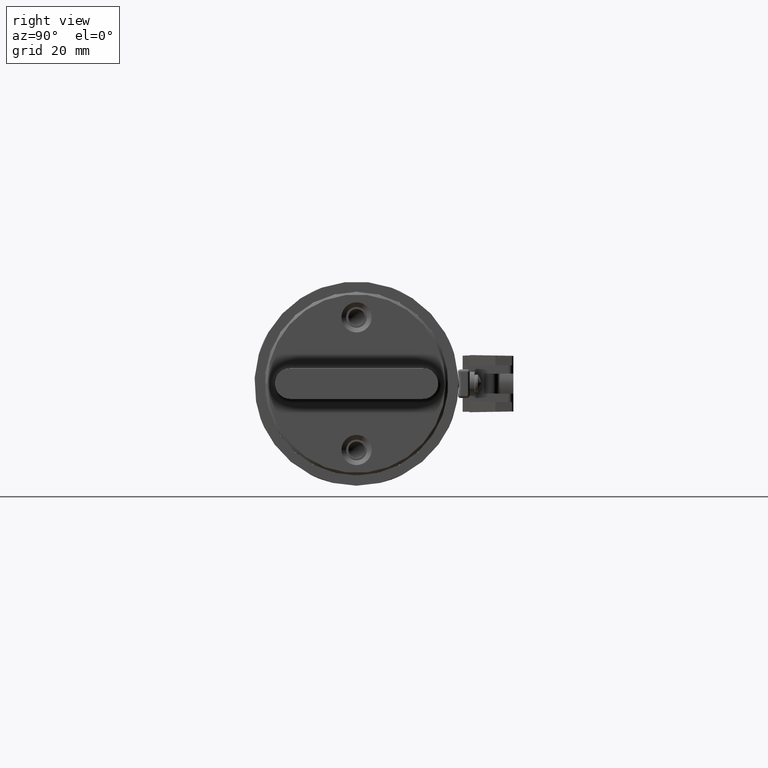
[diagram: clean part render]
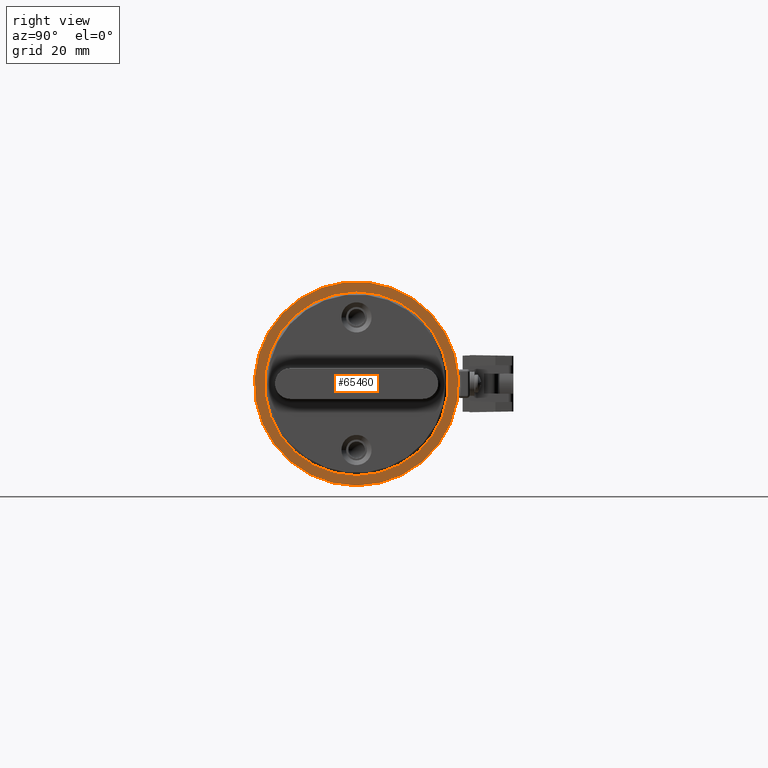
[diagram: same view with one face highlighted and labeled with its STEP entity id]
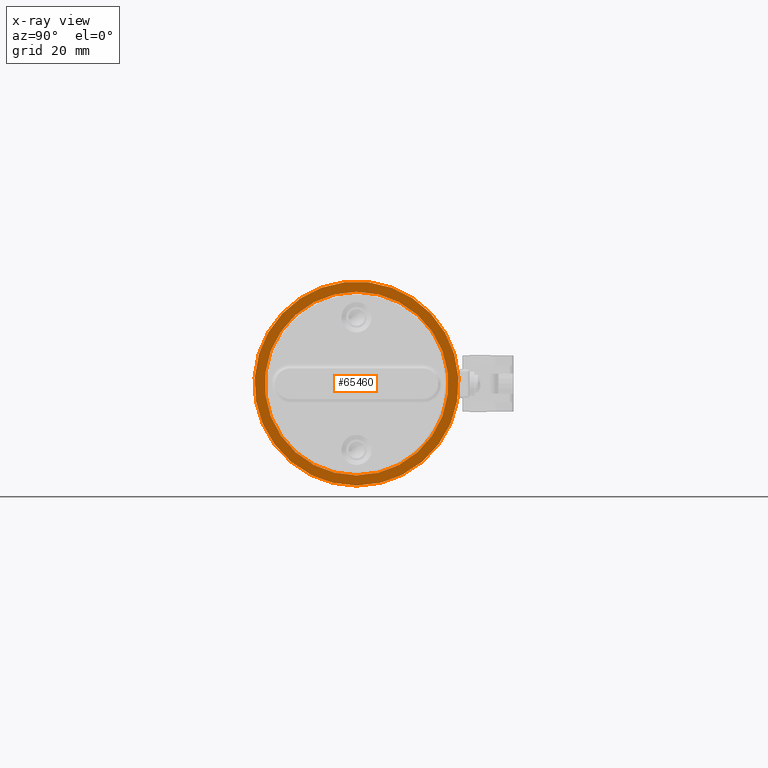
[diagram: x-ray of the same camera — body ghosted, the highlighted face saturated]
A machine part, right view. The second image highlights one B-rep face of the part: STEP entity #65460.
The next image is the same camera in x-ray: the body ghosted, the highlighted face saturated — about 0% of this face is hidden behind the body in this view.
In plain terms, the highlighted planar face has unit normal (1, 0, 0).
Its self-contained STEP definition (entity closure, byte-faithful):
#139 = ORIENTED_EDGE ( 'NONE', *, *, #128876, .T. ) ;
#1163 = FACE_BOUND ( 'NONE', #129718, .T. ) ;
#4731 = CARTESIAN_POINT ( 'NONE',  ( 3.750000000000000000, 5.028988270783843100E-030, -1.250000000000066600 ) ) ;
#9846 = AXIS2_PLACEMENT_3D ( 'NONE', #38471, #114411, #49380 ) ;
#18614 = EDGE_CURVE ( 'NONE', #106602, #106602, #133711, .T. ) ;
#32215 = CARTESIAN_POINT ( 'NONE',  ( 3.750000000000000000, 5.028988270783843100E-030, -6.677458060537492400E-014 ) ) ;
#38471 = CARTESIAN_POINT ( 'NONE',  ( 3.750000000000000000, 5.028988270783843100E-030, -6.677458060537492400E-014 ) ) ;
#43096 = DIRECTION ( 'NONE',  ( 0.0000000000000000000, 0.0000000000000000000, -1.000000000000000000 ) ) ;
#49380 = DIRECTION ( 'NONE',  ( 0.0000000000000000000, 0.0000000000000000000, -1.000000000000000000 ) ) ;
#51005 = DIRECTION ( 'NONE',  ( 1.000000000000000000, 0.0000000000000000000, 0.0000000000000000000 ) ) ;
#57390 = EDGE_LOOP ( 'NONE', ( #139 ) ) ;
#65460 = ADVANCED_FACE ( 'NONE', ( #87701, #1163 ), #128950, .T. ) ;
#67475 = ORIENTED_EDGE ( 'NONE', *, *, #18614, .F. ) ;
#87701 = FACE_OUTER_BOUND ( 'NONE', #57390, .T. ) ;
#96808 = CARTESIAN_POINT ( 'NONE',  ( 3.750000000000000000, 5.028988270783843100E-030, -1.125000000000067100 ) ) ;
#106602 = VERTEX_POINT ( 'NONE', #96808 ) ;
#107047 = CIRCLE ( 'NONE', #127994, 1.250000000000000000 ) ;
#108068 = DIRECTION ( 'NONE',  ( 1.000000000000000000, 0.0000000000000000000, 0.0000000000000000000 ) ) ;
#114411 = DIRECTION ( 'NONE',  ( 1.000000000000000000, 0.0000000000000000000, 0.0000000000000000000 ) ) ;
#116052 = CARTESIAN_POINT ( 'NONE',  ( 3.750000000000000000, 5.028988270783843100E-030, -6.677458060537492400E-014 ) ) ;
#116566 = VERTEX_POINT ( 'NONE', #4731 ) ;
#126919 = DIRECTION ( 'NONE',  ( 0.0000000000000000000, 0.0000000000000000000, -1.000000000000000000 ) ) ;
#127994 = AXIS2_PLACEMENT_3D ( 'NONE', #116052, #51005, #126919 ) ;
#128162 = AXIS2_PLACEMENT_3D ( 'NONE', #32215, #108068, #43096 ) ;
#128876 = EDGE_CURVE ( 'NONE', #116566, #116566, #107047, .T. ) ;
#128950 = PLANE ( 'NONE',  #128162 ) ;
#129718 = EDGE_LOOP ( 'NONE', ( #67475 ) ) ;
#133711 = CIRCLE ( 'NONE', #9846, 1.125000000000000200 ) ;